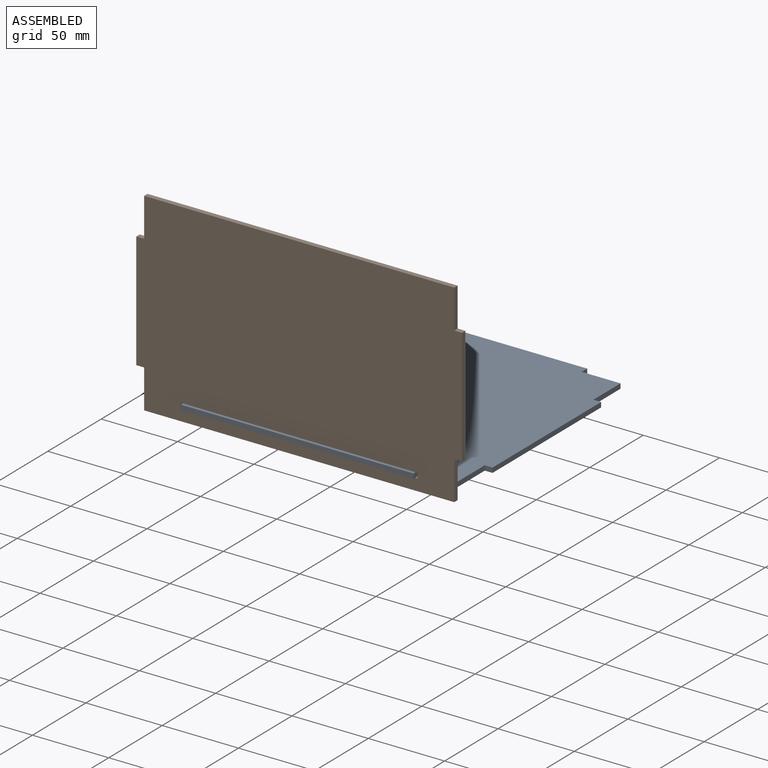
[diagram: assembled view]
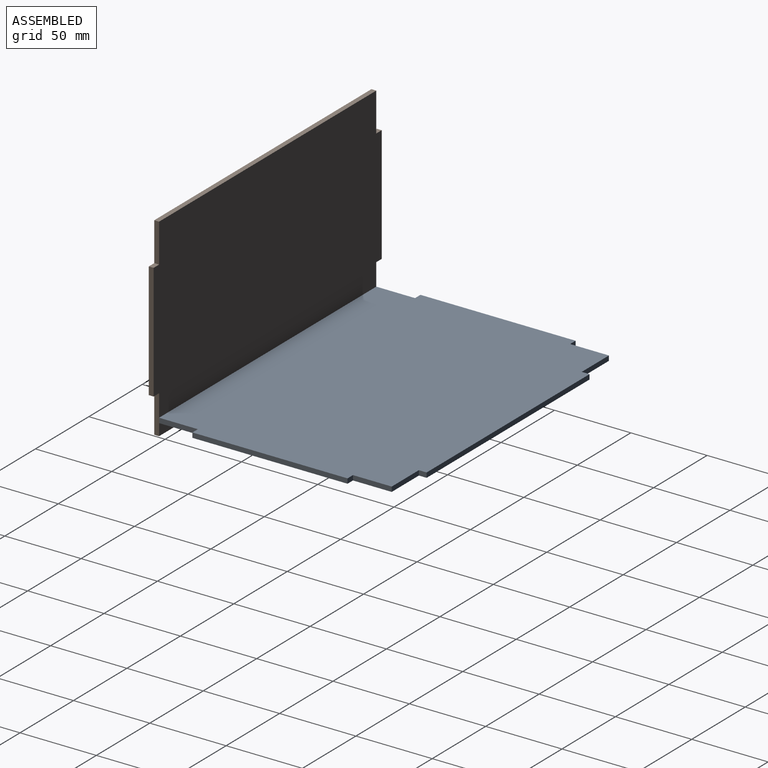
[diagram: assembled view, second angle]
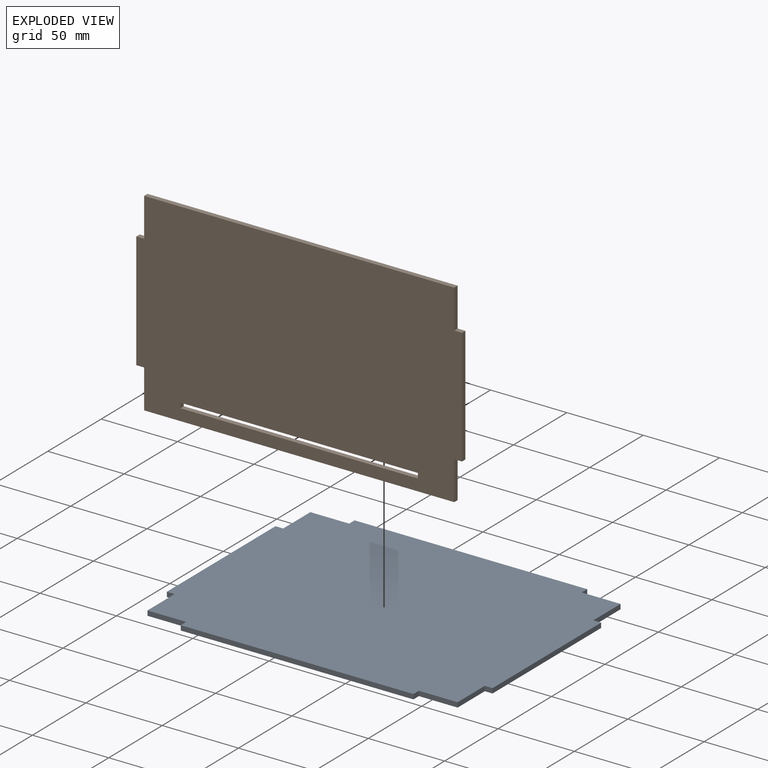
[diagram: exploded view]
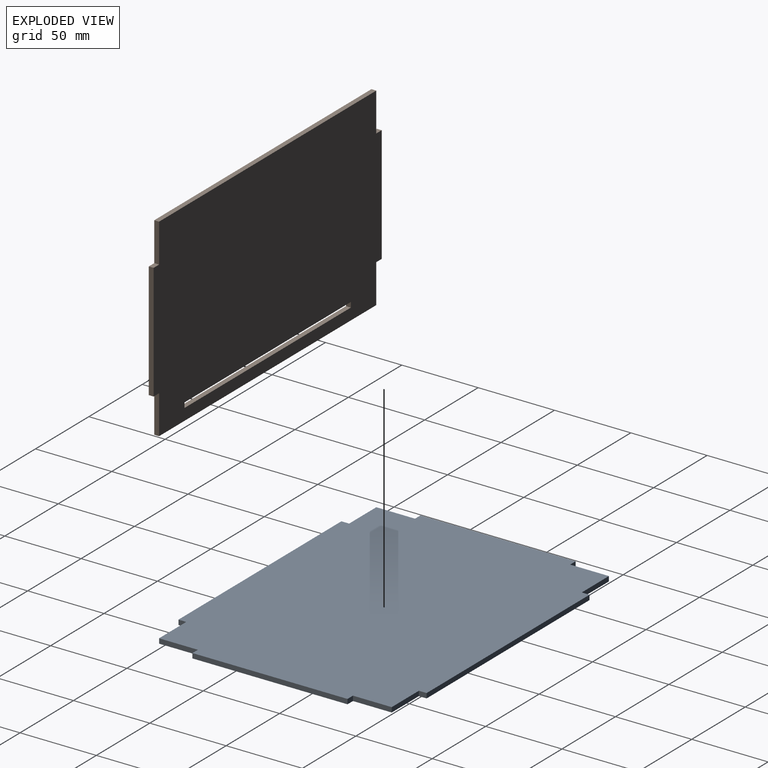
[diagram: exploded view, second angle]
ASSEMBLY  parts=2 mates=3
PART A: 22 faces, bbox 213.4x162.6x3.2 mm
  f0: plane 25.4x3.18mm, normal (0,-1,0), area 80.6mm2, adj f2,f8,f9,f21
  f1: plane 25.4x3.18mm, normal (-1,0,0), area 80.6mm2, adj f6,f8,f9,f18
  f2: plane 25.4x3.18mm, normal (1,0,0), area 80.6mm2, adj f0,f8,f9,f14
  f3: plane 25.4x3.18mm, normal (0,1,0), area 80.6mm2, adj f7,f8,f9,f10
  f4: plane 25.4x3.18mm, normal (0,1,0), area 80.6mm2, adj f5,f8,f9,f12
  f5: plane 25.4x3.18mm, normal (-1,0,0), area 80.6mm2, adj f4,f8,f9,f16
  f6: plane 25.4x3.18mm, normal (0,-1,0), area 80.6mm2, adj f1,f8,f9,f19
  f7: plane 25.4x3.18mm, normal (1,0,0), area 80.6mm2, adj f3,f8,f9,f13
  f8: plane 213.36x162.56mm, normal (0,0,1), area 33548.3mm2, adj f0,f1,f2,f3,f4,f5,f6,f7
  f9: plane 213.36x162.56mm, normal (0,0,-1), area 33548.3mm2, adj f0,f1,f2,f3,f4,f5,f6,f7
  f10: plane 5.08x3.18mm, normal (1,0,0), area 16.1mm2, adj f3,f8,f9,f11
  f11: plane 152.4x3.18mm, normal (0,1,0), area 483.9mm2, adj f8,f9,f10,f12
  f12: plane 5.08x3.18mm, normal (-1,0,0), area 16.1mm2, adj f4,f8,f9,f11
  f13: plane 5.08x3.18mm, normal (0,1,0), area 16.1mm2, adj f7,f8,f9,f15
  f14: plane 5.08x3.18mm, normal (0,-1,0), area 16.1mm2, adj f2,f8,f9,f15
  f15: plane 101.6x3.18mm, normal (1,0,0), area 322.6mm2, adj f8,f9,f13,f14
  f16: plane 5.08x3.18mm, normal (0,1,0), area 16.1mm2, adj f5,f8,f9,f17
  f17: plane 101.6x3.18mm, normal (-1,0,0), area 322.6mm2, adj f8,f9,f16,f18
  f18: plane 5.08x3.18mm, normal (0,-1,0), area 16.1mm2, adj f1,f8,f9,f17
  f19: plane 5.08x3.18mm, normal (-1,0,0), area 16.1mm2, adj f6,f8,f9,f20
  f20: plane 152.4x3.18mm, normal (0,-1,0), area 483.9mm2, adj f8,f9,f19,f21
  f21: plane 5.08x3.18mm, normal (1,0,0), area 16.1mm2, adj f0,f8,f9,f20
PART B: 18 faces, bbox 213.4x3.2x127 mm
  f0: plane 25.4x3.18mm, normal (1,0,0), area 80.6mm2, adj f2,f3,f6,f16
  f1: plane 25.4x3.18mm, normal (-1,0,0), area 80.6mm2, adj f2,f3,f6,f14
  f2: plane 213.36x127mm, normal (0,-1,0), area 26066.9mm2, adj f0,f1,f4,f5,f6,f7,f8,f9
  f3: plane 213.36x127mm, normal (0,1,0), area 26066.9mm2, adj f0,f1,f4,f5,f6,f7,f8,f9
  f4: plane 203.2x3.18mm, normal (0,0,1), area 645.2mm2, adj f2,f3,f5,f7
  f5: plane 25.4x3.18mm, normal (-1,0,0), area 80.6mm2, adj f2,f3,f4,f12
  f6: plane 203.2x3.18mm, normal (0,0,-1), area 645.2mm2, adj f0,f1,f2,f3
  f7: plane 25.4x3.18mm, normal (1,0,0), area 80.6mm2, adj f2,f3,f4,f15
  f8: plane 155.58x3.18mm, normal (0,0,-1), area 494mm2, adj f2,f3,f9,f11
  f9: plane 3.3x3.18mm, normal (1,0,0), area 10.5mm2, adj f2,f3,f8,f10
  f10: plane 155.58x3.18mm, normal (0,0,1), area 494mm2, adj f2,f3,f9,f11
  f11: plane 3.3x3.18mm, normal (-1,0,0), area 10.5mm2, adj f2,f3,f8,f10
  f12: plane 5.08x3.18mm, normal (0,0,1), area 16.1mm2, adj f2,f3,f5,f13
  f13: plane 76.2x3.18mm, normal (-1,0,0), area 241.9mm2, adj f2,f3,f12,f14
  f14: plane 5.08x3.18mm, normal (0,0,-1), area 16.1mm2, adj f1,f2,f3,f13
  f15: plane 5.08x3.18mm, normal (0,0,1), area 16.1mm2, adj f2,f3,f7,f17
  f16: plane 5.08x3.18mm, normal (0,0,-1), area 16.1mm2, adj f0,f2,f3,f17
  f17: plane 76.2x3.18mm, normal (1,0,0), area 241.9mm2, adj f2,f3,f15,f16
PLACE A t=(0,77.79,0)mm
PLACE B t=(-50.56,1.73,52.43)mm
MATE planar B.f8 <-> A.f8  axis (0,0,-1) through (-29.27,0.14,3.17)mm
MATE planar B.f3 <-> A.f0  axis (0,1,0) through (-29.27,1.73,56.82)mm
MATE planar B.f17 <-> A.f15  axis (1,0,0) through (77.41,0.14,55.75)mm
